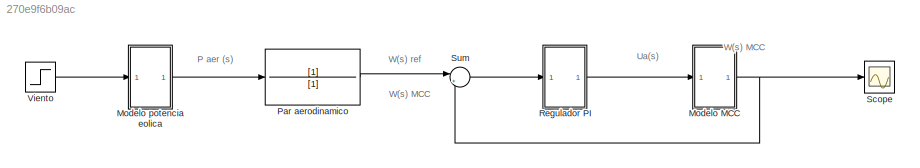
MODEL slx_270e9f6b09ac
KIND model
CONFIG AbsTol = auto
CONFIG EnableMultiTasking = off
CONFIG FixedStep = auto
CONFIG MaxStep = auto
CONFIG MinStep = auto
CONFIG RelTol = 1e-3
CONFIG SampleTimeConstraint = Unconstrained
CONFIG SolverName = VariableStepAuto
CONFIG StartTime = 0.0
CONFIG StopTime = 10.0
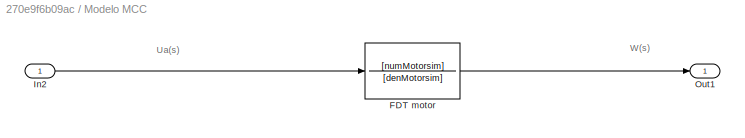
BLOCK [SubSystem] Modelo MCC
  Ports = [1, 1]
  RequestExecContextInheritance = off
BLOCK [TransferFcn] Modelo MCC/FDT motor
  Denominator = [denMotorsim]
  Numerator = [numMotorsim]
BLOCK [Inport] Modelo MCC/In2
BLOCK [Outport] Modelo MCC/Out1
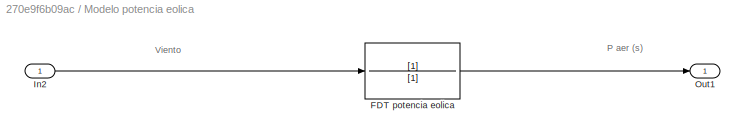
BLOCK [SubSystem] Modelo potencia eolica
  Ports = [1, 1]
  RequestExecContextInheritance = off
BLOCK [TransferFcn] Modelo potencia eolica/FDT potencia eolica
  Denominator = [1]
BLOCK [Inport] Modelo potencia eolica/In2
BLOCK [Outport] Modelo potencia eolica/Out1
BLOCK [TransferFcn] Par aerodinamico
  Denominator = [1]
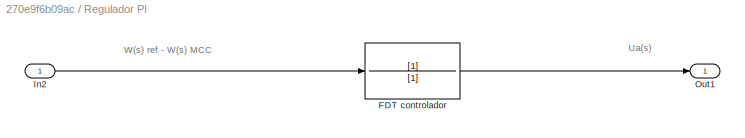
BLOCK [SubSystem] Regulador PI
  Ports = [1, 1]
  RequestExecContextInheritance = off
BLOCK [TransferFcn] Regulador PI/FDT controlador
  Denominator = [1]
BLOCK [Inport] Regulador PI/In2
BLOCK [Outport] Regulador PI/Out1
BLOCK [Scope] Scope
  Floating = off
  NumInputPorts = 1
  Ports = [1]
  ScopeSpecificationString = Simulink.scopes.TimeScopeBlockCfg('CurrentConfiguration', extmgr.ConfigurationSet(extmgr.Configuration('Core','General UI',true),extmgr.Configuration('Core','Source UI',true),extmgr.Configuration('Sources','WiredSimulink',true),extmgr.Configuration('Visuals','Time Domain',true),extmgr.Configuration('Tools','Plot Navigation',true),extmgr.Configuration('Tools','Measurements',true)),'Version','2021b'...<+1ch>
BLOCK [Sum] Sum
  Inputs = |+-
  Ports = [2, 1]
BLOCK [Step] Viento
  SampleTime = 0
ANNOTATION (root): P aer (s)
ANNOTATION (root): Ua(s)
ANNOTATION (root): W(s) MCC
ANNOTATION (root): W(s) ref
ANNOTATION Modelo MCC: Ua(s)
ANNOTATION Modelo MCC: W(s)
ANNOTATION Modelo potencia eolica: P aer (s)
ANNOTATION Modelo potencia eolica: Viento
ANNOTATION Regulador PI: Ua(s)
ANNOTATION Regulador PI: W(s) ref - W(s) MCC
LINE Modelo MCC/FDT motor:1 -> Modelo MCC/Out1:1
LINE Modelo MCC/In2:1 -> Modelo MCC/FDT motor:1
NET Modelo MCC:1 -> Scope:1, Sum:2
LINE Modelo potencia eolica/FDT potencia eolica:1 -> Modelo potencia eolica/Out1:1
LINE Modelo potencia eolica/In2:1 -> Modelo potencia eolica/FDT potencia eolica:1
LINE Modelo potencia eolica:1 -> Par aerodinamico:1
LINE Par aerodinamico:1 -> Sum:1
LINE Regulador PI/FDT controlador:1 -> Regulador PI/Out1:1
LINE Regulador PI/In2:1 -> Regulador PI/FDT controlador:1
LINE Regulador PI:1 -> Modelo MCC:1
LINE Sum:1 -> Regulador PI:1
LINE Viento:1 -> Modelo potencia eolica:1
note: NET lines group one-source signal fan-out (src -> all destinations, sorted); 1:1 wires keep LINE
